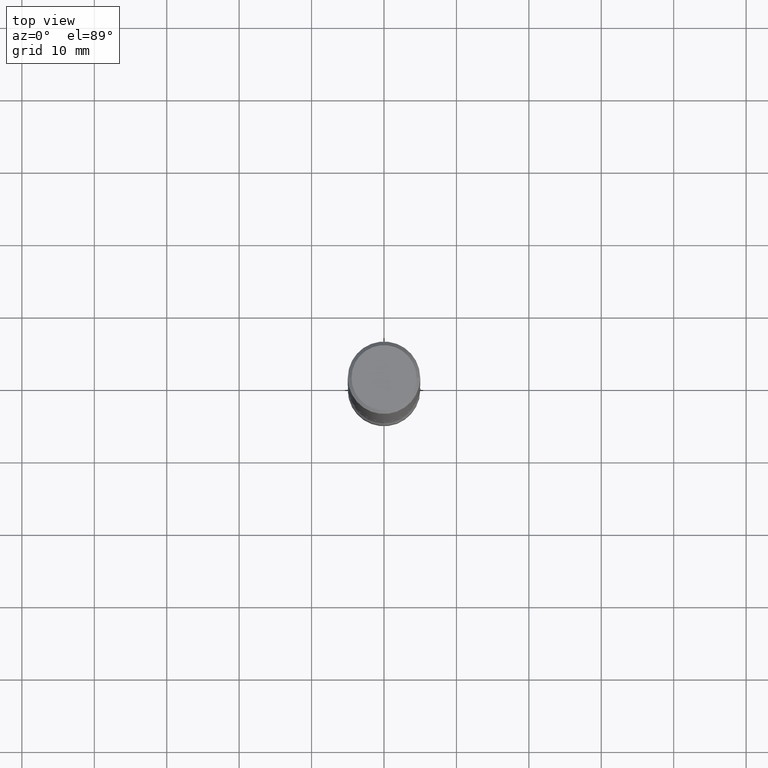
[diagram: clean part render]
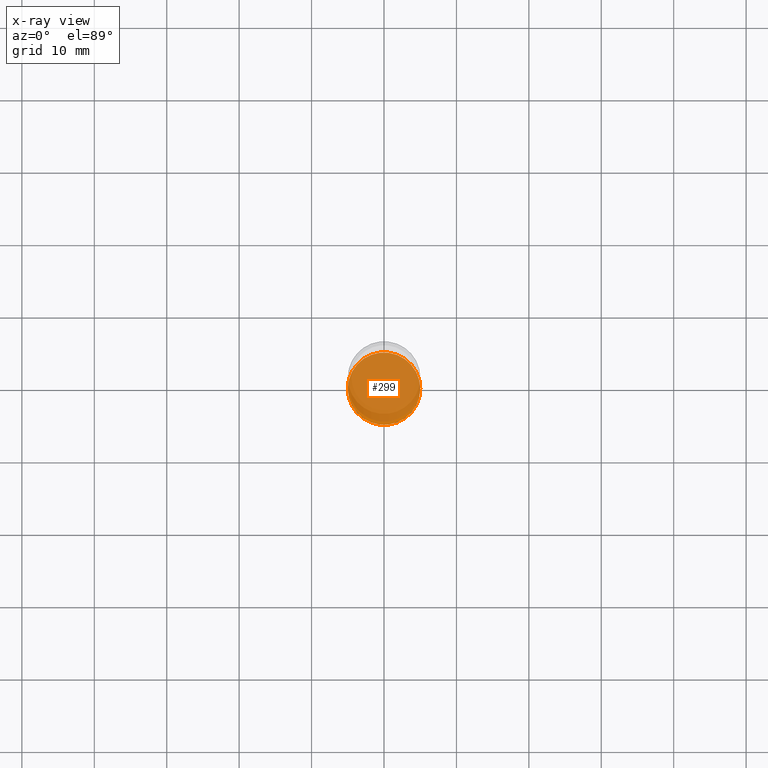
[diagram: x-ray — body ghosted, one internal face saturated and labeled with its STEP entity id]
A machine part, top view, then the same camera in x-ray: the body is ghosted and one INTERNAL B-rep face — a face not visible from any outside direction — is saturated and labeled: STEP entity #299.
In plain terms, the highlighted planar face has unit normal (0, -0, -1).
Its self-contained STEP definition (entity closure, byte-faithful):
#17 = DIRECTION ( 'NONE',  ( 2.438088387897960049E-29, -3.491481338843145188E-15, -1.000000000000000000 ) ) ;
#38 = AXIS2_PLACEMENT_3D ( 'NONE', #496, #373, #282 ) ;
#62 = CARTESIAN_POINT ( 'NONE',  ( 8.472571225909024784E-29, -1.209658624655596216E-14, -3.464599999999999902 ) ) ;
#65 = CIRCLE ( 'NONE', #38, 0.1968500000000001082 ) ;
#95 = CIRCLE ( 'NONE', #521, 0.1968500000000001082 ) ;
#99 = CARTESIAN_POINT ( 'NONE',  ( -0.1968500000000001082, -1.138518097276347833E-14, -3.464599999999999902 ) ) ;
#107 = VERTEX_POINT ( 'NONE', #99 ) ;
#108 = DIRECTION ( 'NONE',  ( -1.000000000000000000, 6.982962677686265922E-15, -4.876176775795935793E-29 ) ) ;
#113 = VERTEX_POINT ( 'NONE', #305 ) ;
#125 = EDGE_CURVE ( 'NONE', #113, #107, #95, .T. ) ;
#137 = AXIS2_PLACEMENT_3D ( 'NONE', #62, #17, #108 ) ;
#139 = DIRECTION ( 'NONE',  ( -2.445468806185136597E-29, 3.491481338843145583E-15, 1.000000000000000000 ) ) ;
#249 = EDGE_LOOP ( 'NONE', ( #551, #335 ) ) ;
#264 = CARTESIAN_POINT ( 'NONE',  ( 8.472571225909024784E-29, -1.209658624655596216E-14, -3.464599999999999902 ) ) ;
#282 = DIRECTION ( 'NONE',  ( 1.000000000000000000, -6.982962677686265133E-15, 0.000000000000000000 ) ) ;
#299 = ADVANCED_FACE ( 'NONE', ( #486 ), #483, .F. ) ;
#305 = CARTESIAN_POINT ( 'NONE',  ( 0.1968500000000001082, -1.347118244965850534E-14, -3.464599999999999902 ) ) ;
#335 = ORIENTED_EDGE ( 'NONE', *, *, #389, .T. ) ;
#336 = DIRECTION ( 'NONE',  ( 1.000000000000000000, -6.982962677686265133E-15, 0.000000000000000000 ) ) ;
#373 = DIRECTION ( 'NONE',  ( -2.445468806185136597E-29, 3.491481338843145583E-15, 1.000000000000000000 ) ) ;
#389 = EDGE_CURVE ( 'NONE', #107, #113, #65, .T. ) ;
#483 = PLANE ( 'NONE',  #137 ) ;
#486 = FACE_OUTER_BOUND ( 'NONE', #249, .T. ) ;
#496 = CARTESIAN_POINT ( 'NONE',  ( 8.472571225909024784E-29, -1.209658624655596216E-14, -3.464599999999999902 ) ) ;
#521 = AXIS2_PLACEMENT_3D ( 'NONE', #264, #139, #336 ) ;
#551 = ORIENTED_EDGE ( 'NONE', *, *, #125, .T. ) ;